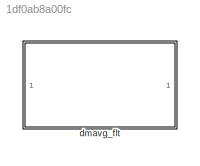
MODEL slx_1df0ab8a00fc
KIND library
CONFIG SolverName = VariableStepAuto
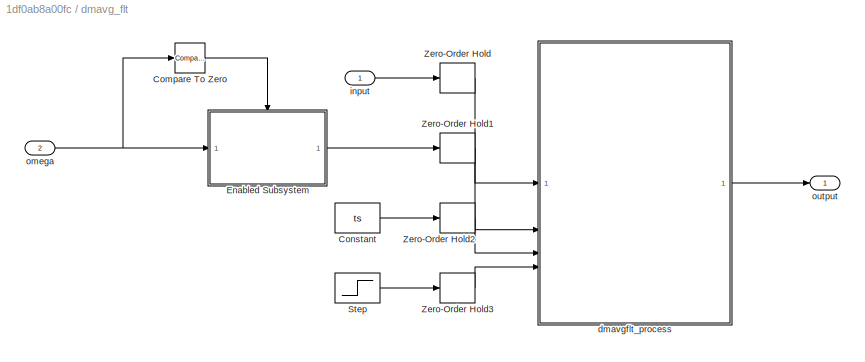
BLOCK [SubSystem] dmavg_flt
BLOCK [Reference] dmavg_flt/Compare To Zero  REF=simulink/Logic and Bit
Operations/Compare
To Zero
  SourceBlock = simulink/Logic and Bit\nOperations/Compare\nTo Zero
  SourceType = Compare To Zero
BLOCK [Constant] dmavg_flt/Constant
  Value = ts
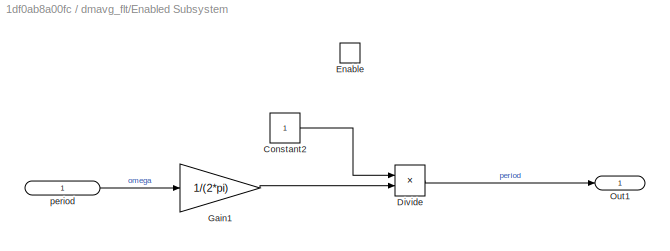
BLOCK [SubSystem] dmavg_flt/Enabled Subsystem
  TreatAsAtomicUnit = on
BLOCK [Constant] dmavg_flt/Enabled Subsystem/Constant2
BLOCK [Product] dmavg_flt/Enabled Subsystem/Divide
  Inputs = */
BLOCK [EnablePort] dmavg_flt/Enabled Subsystem/Enable
BLOCK [Gain] dmavg_flt/Enabled Subsystem/Gain1
  Gain = 1/(2*pi)
BLOCK [Outport] dmavg_flt/Enabled Subsystem/Out1
  IconDisplay = Signal name
BLOCK [Inport] dmavg_flt/Enabled Subsystem/period
  IconDisplay = Signal name
BLOCK [Step] dmavg_flt/Step
  Time = enable_time
BLOCK [ZeroOrderHold] dmavg_flt/Zero-Order Hold
  SampleTime = -1
BLOCK [ZeroOrderHold] dmavg_flt/Zero-Order Hold1
  SampleTime = -1
BLOCK [ZeroOrderHold] dmavg_flt/Zero-Order Hold2
  SampleTime = -1
BLOCK [ZeroOrderHold] dmavg_flt/Zero-Order Hold3
  SampleTime = -1
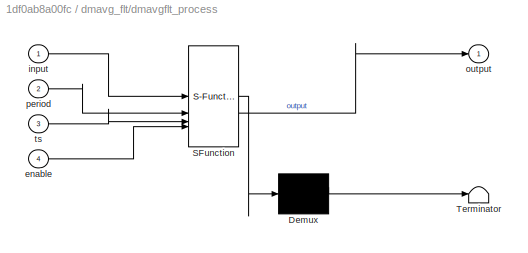
BLOCK [SubSystem] dmavg_flt/dmavgflt_process
  ErrorFcn = Stateflow.Translate.translate
  PermitHierarchicalResolution = ExplicitOnly
  SFBlockType = MATLAB Function
  TreatAsAtomicUnit = on
BLOCK [Demux] dmavg_flt/dmavgflt_process/ Demux 
  Outputs = 1
BLOCK [S-Function] dmavg_flt/dmavgflt_process/ SFunction 
  EnableBusSupport = off
  FunctionName = sf_sfun
  PortCounts = [4 2]
  SFcnIsStateOwnerBlock = off
  SFunctionDeploymentMode = off
  Tag = Stateflow S-Function 6
BLOCK [Terminator] dmavg_flt/dmavgflt_process/ Terminator 
BLOCK [Inport] dmavg_flt/dmavgflt_process/enable
  Port = 4
BLOCK [Inport] dmavg_flt/dmavgflt_process/input
BLOCK [Outport] dmavg_flt/dmavgflt_process/output
  VectorParamsAs1DForOutWhenUnconnected = off
BLOCK [Inport] dmavg_flt/dmavgflt_process/period
  Port = 2
BLOCK [Inport] dmavg_flt/dmavgflt_process/ts
  Port = 3
BLOCK [Inport] dmavg_flt/input
BLOCK [Inport] dmavg_flt/omega
  Port = 2
BLOCK [Outport] dmavg_flt/output
LINE dmavg_flt/Compare To Zero:1 -> dmavg_flt/Enabled Subsystem:enable
LINE dmavg_flt/Constant:1 -> dmavg_flt/Zero-Order Hold2:1
LINE dmavg_flt/Enabled Subsystem/Constant2:1 -> dmavg_flt/Enabled Subsystem/Divide:1
LINE dmavg_flt/Enabled Subsystem/Divide:1 -> dmavg_flt/Enabled Subsystem/Out1:1
LINE dmavg_flt/Enabled Subsystem/Gain1:1 -> dmavg_flt/Enabled Subsystem/Divide:2
LINE dmavg_flt/Enabled Subsystem/period:1 -> dmavg_flt/Enabled Subsystem/Gain1:1
LINE dmavg_flt/Enabled Subsystem:1 -> dmavg_flt/Zero-Order Hold1:1
LINE dmavg_flt/Step:1 -> dmavg_flt/Zero-Order Hold3:1
LINE dmavg_flt/Zero-Order Hold1:1 -> dmavg_flt/dmavgflt_process:2
LINE dmavg_flt/Zero-Order Hold2:1 -> dmavg_flt/dmavgflt_process:3
LINE dmavg_flt/Zero-Order Hold3:1 -> dmavg_flt/dmavgflt_process:4
LINE dmavg_flt/Zero-Order Hold:1 -> dmavg_flt/dmavgflt_process:1
LINE dmavg_flt/dmavgflt_process:1 -> dmavg_flt/output:1
LINE dmavg_flt/input:1 -> dmavg_flt/Zero-Order Hold:1
NET dmavg_flt/omega:1 -> dmavg_flt/Compare To Zero:1, dmavg_flt/Enabled Subsystem:1
note: NET lines group one-source signal fan-out (src -> all destinations, sorted); 1:1 wires keep LINE
CHART dmavg_flt/dmavgflt_process states=1 transitions=1
  STATE_LABEL 'eML_blk_kernel()'
  STATE_LABEL 'SCRIPT:\nfunction output = dmavgflt_process(input, period, ts, enable)\n%#codegen\n% DMAVGFLT_PROCESS  Dynamic Moving Average Filter con periodo variabile e frazionario\n%\n%   output = dmavgflt_process(input, period, ts)\n%\n%   Filtro a media mobile con:\n%   - Buffer circolare\n%   - Periodo variabile e frazionario\n%   - Aggiornamento incrementale (alta efficienza)\n%\n%   Compatibile con Simulink (persis...<+3608ch>'
CHART  states=0 transitions=0
